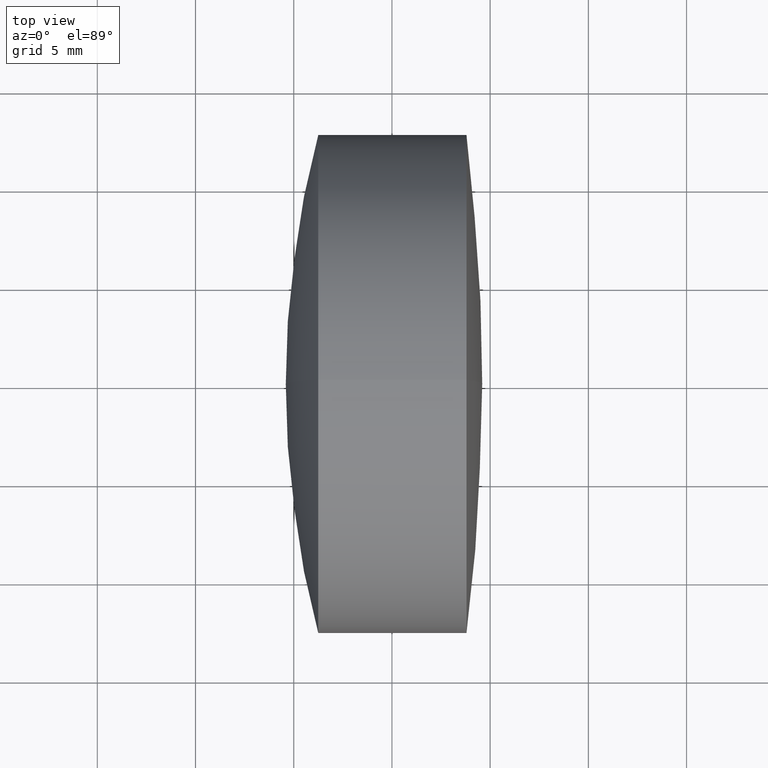
[diagram: clean part render]
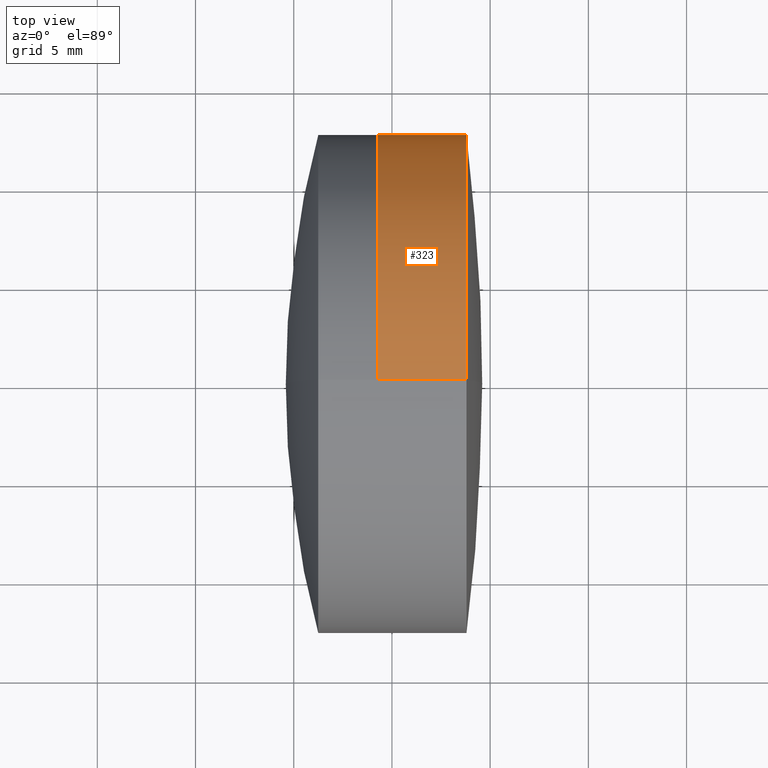
[diagram: same view with one face highlighted and labeled with its STEP entity id]
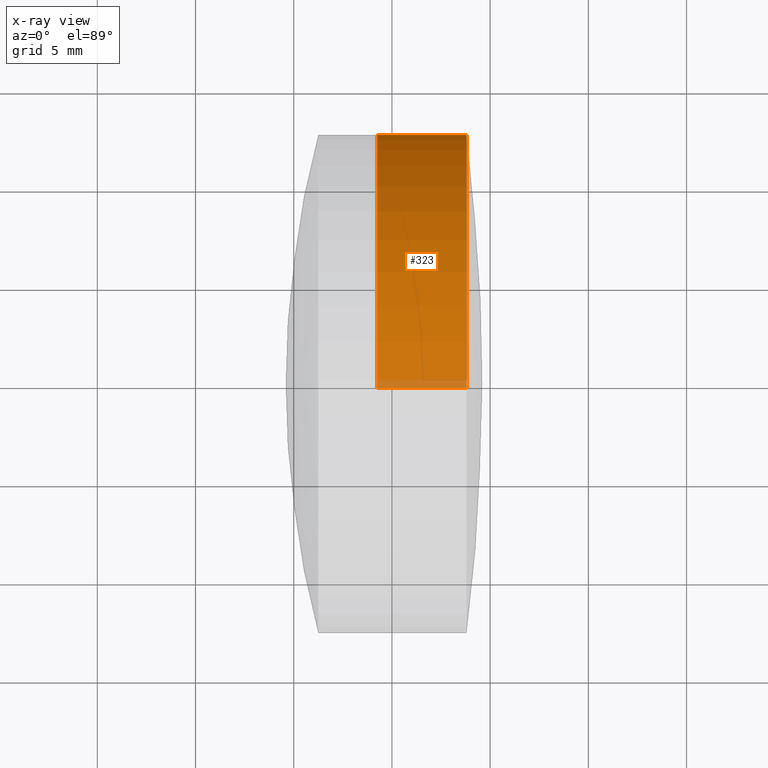
[diagram: x-ray of the same camera — body ghosted, the highlighted face saturated]
A machine part, top view. The second image highlights one B-rep face of the part: STEP entity #323.
The next image is the same camera in x-ray: the body ghosted, the highlighted face saturated — about 3% of this face is hidden behind the body in this view.
In plain terms, the highlighted cylindrical surface (partial cylindrical patch) has radius 12.7 mm, axis along (-1, -0, -0).
Its self-contained STEP definition (entity closure, byte-faithful):
#2 = ORIENTED_EDGE ( 'NONE', *, *, #287, .T. ) ;
#15 = CIRCLE ( 'NONE', #239, 12.69999999999999900 ) ;
#20 = DIRECTION ( 'NONE',  ( -1.000000000000000000, -0.0000000000000000000, -0.0000000000000000000 ) ) ;
#36 = CARTESIAN_POINT ( 'NONE',  ( 244.2464114144539700, 0.0000000000000000000, 12.69999999999999600 ) ) ;
#55 = VERTEX_POINT ( 'NONE', #79 ) ;
#66 = LINE ( 'NONE', #156, #269 ) ;
#69 = VECTOR ( 'NONE', #20, 1000.000000000000000 ) ;
#72 = DIRECTION ( 'NONE',  ( 0.0000000000000000000, 0.0000000000000000000, 1.000000000000000000 ) ) ;
#79 = CARTESIAN_POINT ( 'NONE',  ( 248.7957960076102500, 0.0000000000000000000, 12.69999999999999900 ) ) ;
#96 = EDGE_CURVE ( 'NONE', #281, #336, #313, .T. ) ;
#98 = CARTESIAN_POINT ( 'NONE',  ( -0.5519199926577972300, 0.0000000000000000000, 12.69999999999999900 ) ) ;
#109 = VERTEX_POINT ( 'NONE', #305 ) ;
#114 = EDGE_LOOP ( 'NONE', ( #2, #143, #167, #175 ) ) ;
#143 = ORIENTED_EDGE ( 'NONE', *, *, #265, .T. ) ;
#153 = CARTESIAN_POINT ( 'NONE',  ( 244.2464114144539700, 1.555301434917138000E-015, -12.69999999999999900 ) ) ;
#156 = CARTESIAN_POINT ( 'NONE',  ( -0.5519199926577972300, 1.555301434917138400E-015, -12.69999999999999900 ) ) ;
#167 = ORIENTED_EDGE ( 'NONE', *, *, #96, .F. ) ;
#173 = EDGE_CURVE ( 'NONE', #55, #281, #209, .T. ) ;
#175 = ORIENTED_EDGE ( 'NONE', *, *, #173, .F. ) ;
#179 = FACE_OUTER_BOUND ( 'NONE', #114, .T. ) ;
#209 = LINE ( 'NONE', #98, #69 ) ;
#239 = AXIS2_PLACEMENT_3D ( 'NONE', #300, #267, #72 ) ;
#257 = CARTESIAN_POINT ( 'NONE',  ( -0.5519199926577972300, 0.0000000000000000000, 0.0000000000000000000 ) ) ;
#259 = DIRECTION ( 'NONE',  ( -1.000000000000000000, -0.0000000000000000000, -0.0000000000000000000 ) ) ;
#260 = CYLINDRICAL_SURFACE ( 'NONE', #309, 12.69999999999999900 ) ;
#265 = EDGE_CURVE ( 'NONE', #109, #336, #66, .T. ) ;
#267 = DIRECTION ( 'NONE',  ( -1.000000000000000000, -0.0000000000000000000, -0.0000000000000000000 ) ) ;
#269 = VECTOR ( 'NONE', #322, 1000.000000000000000 ) ;
#277 = CARTESIAN_POINT ( 'NONE',  ( 244.2464114144539700, 0.0000000000000000000, 0.0000000000000000000 ) ) ;
#278 = DIRECTION ( 'NONE',  ( -1.000000000000000000, -0.0000000000000000000, -0.0000000000000000000 ) ) ;
#281 = VERTEX_POINT ( 'NONE', #36 ) ;
#282 = AXIS2_PLACEMENT_3D ( 'NONE', #277, #278, #283 ) ;
#283 = DIRECTION ( 'NONE',  ( 0.0000000000000000000, 0.0000000000000000000, 1.000000000000000000 ) ) ;
#287 = EDGE_CURVE ( 'NONE', #55, #109, #15, .T. ) ;
#288 = DIRECTION ( 'NONE',  ( 0.0000000000000000000, 0.0000000000000000000, 1.000000000000000000 ) ) ;
#300 = CARTESIAN_POINT ( 'NONE',  ( 248.7957960076102500, 0.0000000000000000000, 0.0000000000000000000 ) ) ;
#305 = CARTESIAN_POINT ( 'NONE',  ( 248.7957960076102500, 1.555301434917138400E-015, -12.69999999999999900 ) ) ;
#309 = AXIS2_PLACEMENT_3D ( 'NONE', #257, #259, #288 ) ;
#313 = CIRCLE ( 'NONE', #282, 12.69999999999999800 ) ;
#322 = DIRECTION ( 'NONE',  ( -1.000000000000000000, -0.0000000000000000000, -0.0000000000000000000 ) ) ;
#323 = ADVANCED_FACE ( 'NONE', ( #179 ), #260, .T. ) ;
#336 = VERTEX_POINT ( 'NONE', #153 ) ;